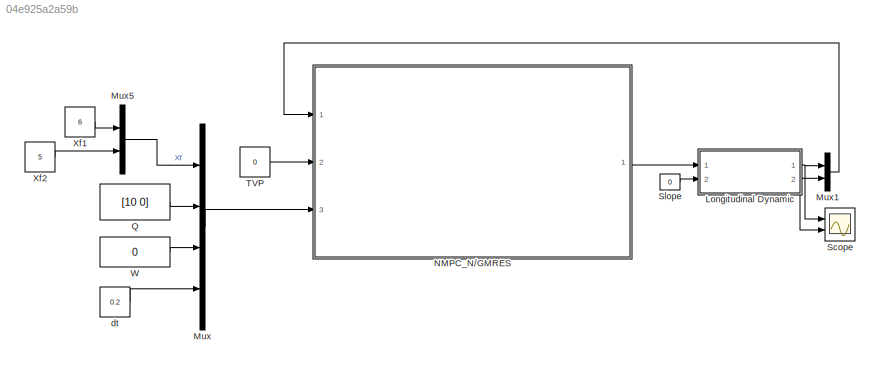
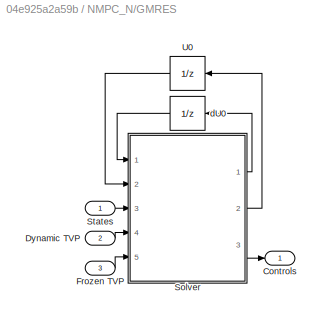
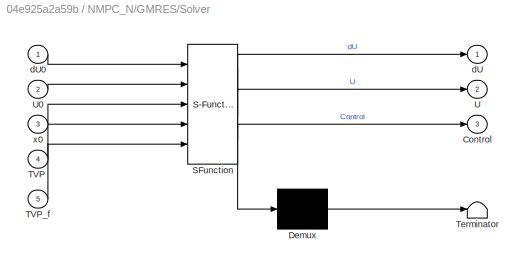
MODEL slx_04e925a2a59b
KIND model
CONFIG AbsTol = auto
CONFIG EnableMultiTasking = on
CONFIG FixedStep = auto
CONFIG MaxStep = auto
CONFIG MinStep = auto
CONFIG RelTol = 1e-3
CONFIG SampleTimeConstraint = Unconstrained
CONFIG Solver = VariableStepAuto
CONFIG SolverName = VariableStepAuto
CONFIG StartTime = 0.0
CONFIG StopTime = 10.0
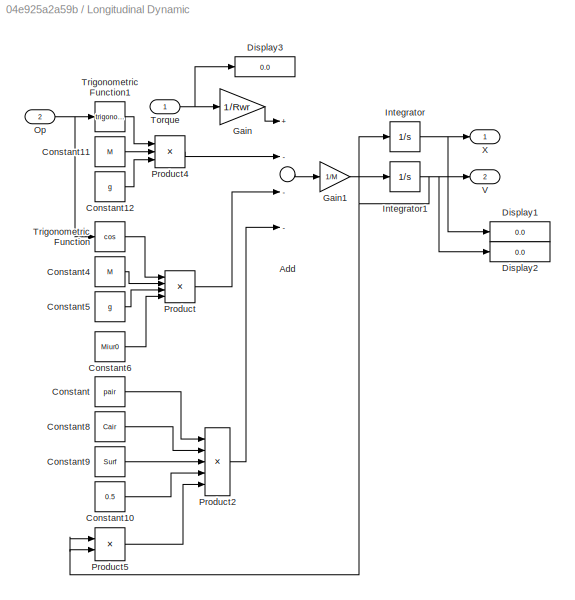
BLOCK [SubSystem] Longitudinal Dynamic
  Ports = [2, 2]
  RequestExecContextInheritance = off
BLOCK [Sum] Longitudinal Dynamic/Add
  InputSameDT = off
  Inputs = +---
  OutDataTypeStr = Inherit: Inherit via internal rule
  Ports = [4, 1]
  SaturateOnIntegerOverflow = off
BLOCK [Constant] Longitudinal Dynamic/Constant
  Value = pair
BLOCK [Constant] Longitudinal Dynamic/Constant10
  Value = 0.5
BLOCK [Constant] Longitudinal Dynamic/Constant11
  Value = M
BLOCK [Constant] Longitudinal Dynamic/Constant12
  Value = g
BLOCK [Constant] Longitudinal Dynamic/Constant4
  Value = M
BLOCK [Constant] Longitudinal Dynamic/Constant5
  Value = g
BLOCK [Constant] Longitudinal Dynamic/Constant6
  Value = Miur0
BLOCK [Constant] Longitudinal Dynamic/Constant8
  Value = Cair
BLOCK [Constant] Longitudinal Dynamic/Constant9
  Value = Surf
BLOCK [Display] Longitudinal Dynamic/Display1
  Decimation = 1
  Ports = [1]
BLOCK [Display] Longitudinal Dynamic/Display2
  Decimation = 1
  Ports = [1]
BLOCK [Display] Longitudinal Dynamic/Display3
  Decimation = 1
  Ports = [1]
BLOCK [Gain] Longitudinal Dynamic/Gain
  Gain = 1/Rwr
  OutDataTypeStr = Inherit: Inherit via internal rule
  ParamDataTypeStr = Inherit: Inherit via internal rule
  SaturateOnIntegerOverflow = off
BLOCK [Gain] Longitudinal Dynamic/Gain1
  Gain = 1/M
  OutDataTypeStr = Inherit: Inherit via internal rule
  ParamDataTypeStr = Inherit: Inherit via internal rule
  SaturateOnIntegerOverflow = off
BLOCK [Integrator] Longitudinal Dynamic/Integrator
  Ports = [1, 1]
BLOCK [Integrator] Longitudinal Dynamic/Integrator1
  Ports = [1, 1]
BLOCK [Inport] Longitudinal Dynamic/Op 
  IconDisplay = Port number
  Port = 2
BLOCK [Product] Longitudinal Dynamic/Product
  InputSameDT = off
  Inputs = 4
  OutDataTypeStr = Inherit: Inherit via internal rule
  Ports = [4, 1]
  RndMeth = Floor
  SaturateOnIntegerOverflow = off
BLOCK [Product] Longitudinal Dynamic/Product2
  InputSameDT = off
  Inputs = 5
  OutDataTypeStr = Inherit: Inherit via internal rule
  Ports = [5, 1]
  RndMeth = Floor
  SaturateOnIntegerOverflow = off
BLOCK [Product] Longitudinal Dynamic/Product4
  InputSameDT = off
  Inputs = 3
  OutDataTypeStr = Inherit: Inherit via internal rule
  Ports = [3, 1]
  RndMeth = Floor
  SaturateOnIntegerOverflow = off
BLOCK [Product] Longitudinal Dynamic/Product5
  InputSameDT = off
  OutDataTypeStr = Inherit: Inherit via internal rule
  Ports = [2, 1]
  RndMeth = Floor
  SaturateOnIntegerOverflow = off
BLOCK [Inport] Longitudinal Dynamic/Torque
  IconDisplay = Port number
BLOCK [Trigonometry] Longitudinal Dynamic/Trigonometric Function
  Operator = cos
  Ports = [1, 1]
BLOCK [Trigonometry] Longitudinal Dynamic/Trigonometric Function1
  Ports = [1, 1]
BLOCK [Outport] Longitudinal Dynamic/V
  IconDisplay = Port number
  Port = 2
BLOCK [Outport] Longitudinal Dynamic/X
  IconDisplay = Port number
BLOCK [Mux] Mux
  DisplayOption = bar
  Ports = [4, 1]
BLOCK [Mux] Mux1
  DisplayOption = bar
  Inputs = 2
  Ports = [2, 1]
BLOCK [Mux] Mux5
  DisplayOption = bar
  Inputs = 2
  Ports = [2, 1]
BLOCK [SubSystem] NMPC_N//GMRES
  Permissions = ReadOnly
  Ports = [3, 1]
  RequestExecContextInheritance = off
  ShowPortLabels = FromPortBlockName
BLOCK [Outport] NMPC_N//GMRES/Controls
  IconDisplay = Port number
BLOCK [Inport] NMPC_N//GMRES/Dynamic TVP
  IconDisplay = Port number
  Port = 2
BLOCK [Inport] NMPC_N//GMRES/Frozen TVP
  IconDisplay = Port number
  Port = 3
BLOCK [SubSystem] NMPC_N//GMRES/Solver
  ErrorFcn = Stateflow.Translate.translate
  PermitHierarchicalResolution = ExplicitOnly
  Ports = [5, 3]
  RequestExecContextInheritance = off
  SFBlockType = MATLAB Function
  ShowPortLabels = none
  TreatAsAtomicUnit = on
BLOCK [Demux] NMPC_N//GMRES/Solver/ Demux 
  Outputs = 1
  Ports = [1, 1]
BLOCK [S-Function] NMPC_N//GMRES/Solver/ SFunction 
  EnableBusSupport = on
  FunctionName = sf_sfun
  PortCounts = [5 4]
  Ports = [5, 4]
  SFcnIsStateOwnerBlock = off
  SFunctionDeploymentMode = off
  Tag = Stateflow S-Function IntegratorSimulink 5
BLOCK [Terminator] NMPC_N//GMRES/Solver/ Terminator 
BLOCK [Outport] NMPC_N//GMRES/Solver/Control
  IconDisplay = Port number
  Port = 3
BLOCK [Inport] NMPC_N//GMRES/Solver/TVP
  IconDisplay = Port number
  Port = 4
BLOCK [Inport] NMPC_N//GMRES/Solver/TVP_f
  IconDisplay = Port number
  Port = 5
BLOCK [Outport] NMPC_N//GMRES/Solver/U
  IconDisplay = Port number
  Port = 2
BLOCK [Inport] NMPC_N//GMRES/Solver/U0
  IconDisplay = Port number
  Port = 2
BLOCK [Outport] NMPC_N//GMRES/Solver/dU
  IconDisplay = Port number
BLOCK [Inport] NMPC_N//GMRES/Solver/dU0
  IconDisplay = Port number
BLOCK [Inport] NMPC_N//GMRES/Solver/x0
  IconDisplay = Port number
  Port = 3
BLOCK [Inport] NMPC_N//GMRES/States
  IconDisplay = Port number
BLOCK [UnitDelay] NMPC_N//GMRES/U0
  InitialCondition = U0
  InputProcessing = Elements as channels (sample based)
  SampleTime = -1
BLOCK [UnitDelay] NMPC_N//GMRES/dU0
  InitialCondition = dU0
  InputProcessing = Elements as channels (sample based)
  SampleTime = -1
BLOCK [Constant] Q
  Value = [10 0]
BLOCK [Scope] Scope
  Floating = off
  NumInputPorts = 2
  Ports = [2]
  ScopeSpecificationString = Simulink.scopes.TimeScopeBlockCfg('CurrentConfiguration', extmgr.ConfigurationSet(extmgr.Configuration('Core','General UI',true),extmgr.Configuration('Core','Source UI',true),extmgr.Configuration('Sources','WiredSimulink',true),extmgr.Configuration('Visuals','Time Domain',true,'SerializedDisplays',{struct('MinYLimReal','-2.36309','MaxYLimReal','10.91455','YLabelReal','','MinYLimMag','0.00000','Max...<+1371ch>
BLOCK [Constant] Slope
  Value = 0
BLOCK [Constant] TVP
  Value = 0
BLOCK [Constant] W
  Value = 0
BLOCK [Constant] Xf1
  Value = 6
BLOCK [Constant] Xf2
  Value = 5
BLOCK [Constant] dt
  Value = 0.2
LINE Longitudinal Dynamic/Add:1 -> Longitudinal Dynamic/Gain1:1
LINE Longitudinal Dynamic/Constant10:1 -> Longitudinal Dynamic/Product2:4
LINE Longitudinal Dynamic/Constant11:1 -> Longitudinal Dynamic/Product4:2
LINE Longitudinal Dynamic/Constant12:1 -> Longitudinal Dynamic/Product4:3
LINE Longitudinal Dynamic/Constant4:1 -> Longitudinal Dynamic/Product:2
LINE Longitudinal Dynamic/Constant5:1 -> Longitudinal Dynamic/Product:3
LINE Longitudinal Dynamic/Constant6:1 -> Longitudinal Dynamic/Product:4
LINE Longitudinal Dynamic/Constant8:1 -> Longitudinal Dynamic/Product2:2
LINE Longitudinal Dynamic/Constant9:1 -> Longitudinal Dynamic/Product2:3
LINE Longitudinal Dynamic/Constant:1 -> Longitudinal Dynamic/Product2:1
LINE Longitudinal Dynamic/Gain1:1 -> Longitudinal Dynamic/Integrator1:1
LINE Longitudinal Dynamic/Gain:1 -> Longitudinal Dynamic/Add:1
NET Longitudinal Dynamic/Integrator1:1 -> Longitudinal Dynamic/Display2:1, Longitudinal Dynamic/Integrator:1, Longitudinal Dynamic/Product5:1, Longitudinal Dynamic/Product5:2, Longitudinal Dynamic/V:1
NET Longitudinal Dynamic/Integrator:1 -> Longitudinal Dynamic/Display1:1, Longitudinal Dynamic/X:1
NET Longitudinal Dynamic/Op :1 -> Longitudinal Dynamic/Trigonometric Function1:1, Longitudinal Dynamic/Trigonometric Function:1
LINE Longitudinal Dynamic/Product2:1 -> Longitudinal Dynamic/Add:4
LINE Longitudinal Dynamic/Product4:1 -> Longitudinal Dynamic/Add:2
LINE Longitudinal Dynamic/Product5:1 -> Longitudinal Dynamic/Product2:5
LINE Longitudinal Dynamic/Product:1 -> Longitudinal Dynamic/Add:3
NET Longitudinal Dynamic/Torque:1 -> Longitudinal Dynamic/Display3:1, Longitudinal Dynamic/Gain:1
LINE Longitudinal Dynamic/Trigonometric Function1:1 -> Longitudinal Dynamic/Product4:1
LINE Longitudinal Dynamic/Trigonometric Function:1 -> Longitudinal Dynamic/Product:1
NET Longitudinal Dynamic:1 -> Mux1:1, Scope:1
NET Longitudinal Dynamic:2 -> Mux1:2, Scope:2
LINE Mux1:1 -> NMPC_N//GMRES:1
LINE Mux5:1 -> Mux:1
LINE Mux:1 -> NMPC_N//GMRES:3
LINE NMPC_N//GMRES/Dynamic TVP:1 -> NMPC_N//GMRES/Solver:4
LINE NMPC_N//GMRES/Frozen TVP:1 -> NMPC_N//GMRES/Solver:5
LINE NMPC_N//GMRES/Solver:1 -> NMPC_N//GMRES/dU0:1
LINE NMPC_N//GMRES/Solver:2 -> NMPC_N//GMRES/U0:1
LINE NMPC_N//GMRES/Solver:3 -> NMPC_N//GMRES/Controls:1
LINE NMPC_N//GMRES/States:1 -> NMPC_N//GMRES/Solver:3
LINE NMPC_N//GMRES/U0:1 -> NMPC_N//GMRES/Solver:2
LINE NMPC_N//GMRES/dU0:1 -> NMPC_N//GMRES/Solver:1
LINE NMPC_N//GMRES:1 -> Longitudinal Dynamic:1
LINE Q:1 -> Mux:2
LINE Slope:1 -> Longitudinal Dynamic:2
LINE TVP:1 -> NMPC_N//GMRES:2
LINE W:1 -> Mux:3
LINE Xf1:1 -> Mux5:1
LINE Xf2:1 -> Mux5:2
LINE dt:1 -> Mux:4
note: NET lines group one-source signal fan-out (src -> all destinations, sorted); 1:1 wires keep LINE
CHART NMPC_N//GMRES/Solver states=1 transitions=1
  STATE_LABEL 'eML_blk_kernel()'
  STATE_LABEL 'SCRIPT:\n%% NGMRES  NGMRES NGMRES\nfunction [dU,U,Control] = NMPCBlock(dU0,U0,x0,TVP,TVP_f)\n[dU,U,Control]=NMPC(dU0,U0,x0,TVP,TVP_f);\n\n'
